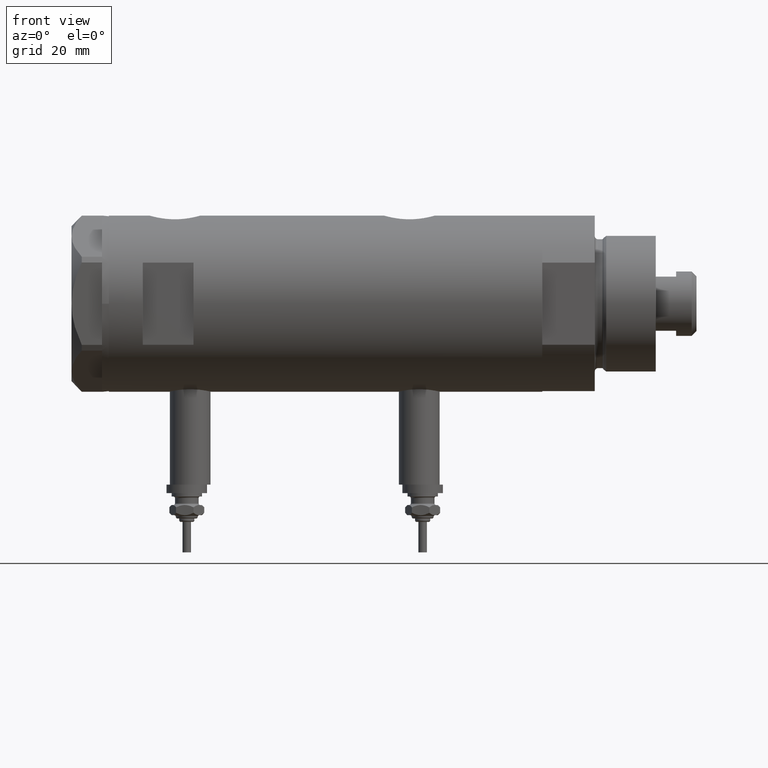
[diagram: clean part render]
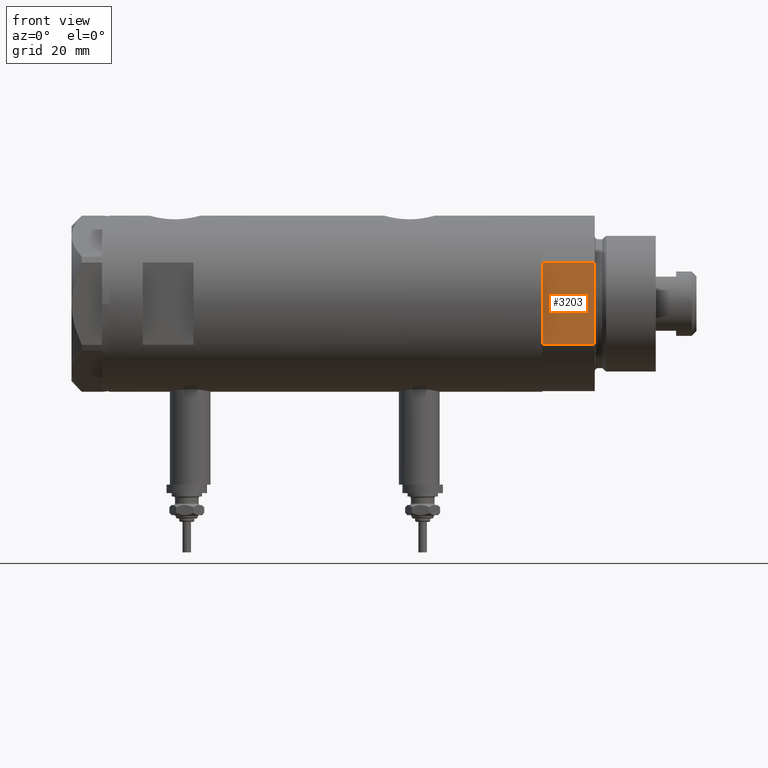
[diagram: same view with one face highlighted and labeled with its STEP entity id]
A machine part, front view. The second image highlights one B-rep face of the part: STEP entity #3203.
In plain terms, the highlighted planar face has unit normal (-0, 1, 0).
Its self-contained STEP definition (entity closure, byte-faithful):
#35 = CARTESIAN_POINT ( 'NONE',  ( -12.12435565298215501, -22.99999999999999645, 0.000000000000000000 ) ) ;
#134 = LINE ( 'NONE', #3117, #4577 ) ;
#139 = VERTEX_POINT ( 'NONE', #2958 ) ;
#404 = DIRECTION ( 'NONE',  ( -0.000000000000000000, -0.000000000000000000, 1.000000000000000000 ) ) ;
#654 = CARTESIAN_POINT ( 'NONE',  ( -12.12435565298215145, -22.99999999999999645, 0.000000000000000000 ) ) ;
#747 = ORIENTED_EDGE ( 'NONE', *, *, #1449, .F. ) ;
#902 = CARTESIAN_POINT ( 'NONE',  ( 12.12435565298215323, -22.99999999999999645, 0.000000000000000000 ) ) ;
#927 = DIRECTION ( 'NONE',  ( -1.000000000000000000, -0.000000000000000000, -0.000000000000000000 ) ) ;
#1039 = VERTEX_POINT ( 'NONE', #1865 ) ;
#1335 = PLANE ( 'NONE',  #2732 ) ;
#1449 = EDGE_CURVE ( 'NONE', #3370, #3513, #4140, .T. ) ;
#1577 = ORIENTED_EDGE ( 'NONE', *, *, #3221, .T. ) ;
#1736 = EDGE_CURVE ( 'NONE', #1039, #139, #134, .T. ) ;
#1865 = CARTESIAN_POINT ( 'NONE',  ( 12.12435565298215323, -22.99999999999999645, 15.50000000000000000 ) ) ;
#1980 = FACE_OUTER_BOUND ( 'NONE', #4956, .T. ) ;
#2152 = ORIENTED_EDGE ( 'NONE', *, *, #2326, .F. ) ;
#2326 = EDGE_CURVE ( 'NONE', #3513, #139, #4700, .T. ) ;
#2481 = CARTESIAN_POINT ( 'NONE',  ( -12.12435565298215145, -22.99999999999999645, 0.000000000000000000 ) ) ;
#2579 = DIRECTION ( 'NONE',  ( -0.000000000000000000, 1.000000000000000000, 0.000000000000000000 ) ) ;
#2732 = AXIS2_PLACEMENT_3D ( 'NONE', #654, #2579, #3553 ) ;
#2739 = VECTOR ( 'NONE', #4345, 1000.000000000000000 ) ;
#2958 = CARTESIAN_POINT ( 'NONE',  ( -12.12435565298215323, -22.99999999999999645, 15.50000000000000000 ) ) ;
#3117 = CARTESIAN_POINT ( 'NONE',  ( -12.12435565298215145, -22.99999999999999645, 15.50000000000000000 ) ) ;
#3161 = CARTESIAN_POINT ( 'NONE',  ( 12.12435565298215323, -22.99999999999999645, 0.000000000000000000 ) ) ;
#3203 = ADVANCED_FACE ( 'NONE', ( #1980 ), #1335, .F. ) ;
#3221 = EDGE_CURVE ( 'NONE', #3370, #1039, #5831, .T. ) ;
#3370 = VERTEX_POINT ( 'NONE', #3161 ) ;
#3513 = VERTEX_POINT ( 'NONE', #35 ) ;
#3553 = DIRECTION ( 'NONE',  ( 0.000000000000000000, -0.000000000000000000, 1.000000000000000000 ) ) ;
#4087 = DIRECTION ( 'NONE',  ( -1.000000000000000000, -0.000000000000000000, -0.000000000000000000 ) ) ;
#4140 = LINE ( 'NONE', #2481, #4782 ) ;
#4345 = DIRECTION ( 'NONE',  ( -0.000000000000000000, -0.000000000000000000, 1.000000000000000000 ) ) ;
#4577 = VECTOR ( 'NONE', #4087, 1000.000000000000000 ) ;
#4682 = VECTOR ( 'NONE', #404, 1000.000000000000000 ) ;
#4700 = LINE ( 'NONE', #4795, #4682 ) ;
#4782 = VECTOR ( 'NONE', #927, 1000.000000000000000 ) ;
#4795 = CARTESIAN_POINT ( 'NONE',  ( -12.12435565298215145, -22.99999999999999645, 0.000000000000000000 ) ) ;
#4956 = EDGE_LOOP ( 'NONE', ( #5378, #2152, #747, #1577 ) ) ;
#5378 = ORIENTED_EDGE ( 'NONE', *, *, #1736, .T. ) ;
#5831 = LINE ( 'NONE', #902, #2739 ) ;